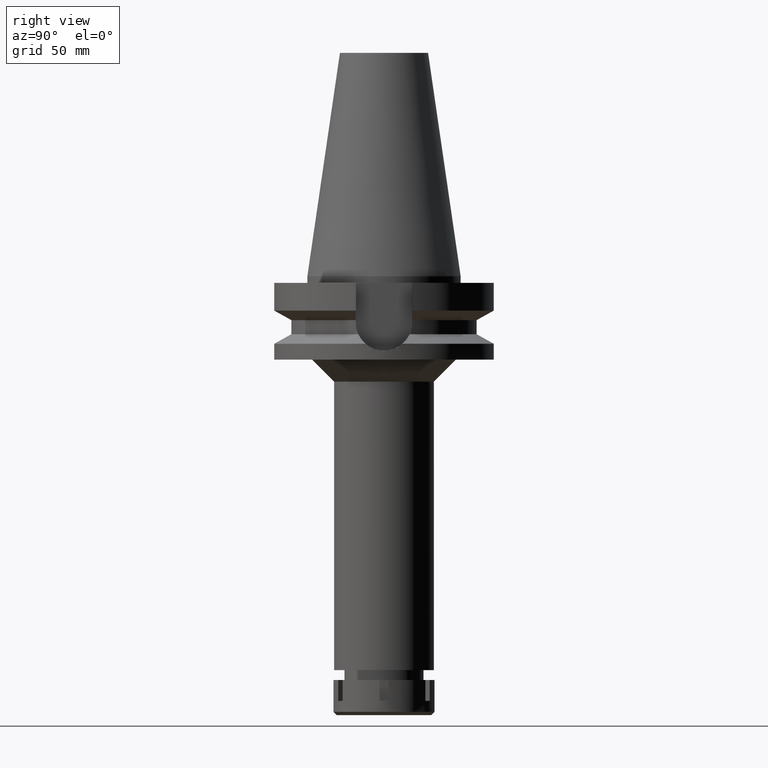
[diagram: clean part render]
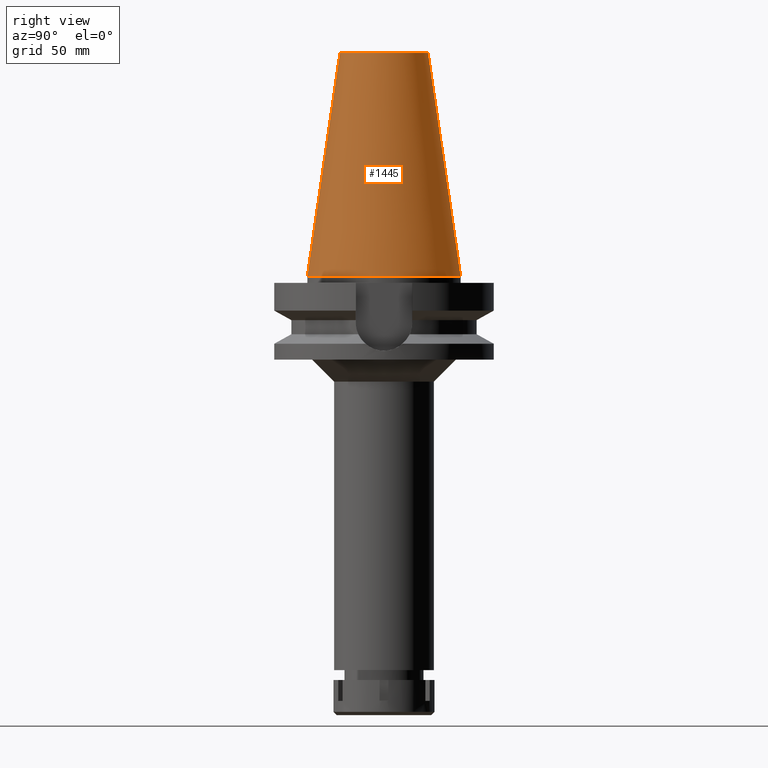
[diagram: same view with one face highlighted and labeled with its STEP entity id]
A machine part, right view. The second image highlights one B-rep face of the part: STEP entity #1445.
In plain terms, the highlighted conical surface has half-angle 8.297 deg.
Its self-contained STEP definition (entity closure, byte-faithful):
#141 = ORIENTED_EDGE ( 'NONE', *, *, #3213, .T. ) ;
#473 = CARTESIAN_POINT ( 'NONE',  ( 0.0000000000000000000, -34.92499999999999716, 5.400124791776999712E-13 ) ) ;
#605 = AXIS2_PLACEMENT_3D ( 'NONE', #2184, #2203, #3037 ) ;
#655 = EDGE_LOOP ( 'NONE', ( #141, #1182, #2547, #2921 ) ) ;
#761 = VERTEX_POINT ( 'NONE', #2329 ) ;
#1037 = VERTEX_POINT ( 'NONE', #1065 ) ;
#1065 = CARTESIAN_POINT ( 'NONE',  ( 0.0000000000000000000, 20.07942971896000017, 101.7999999999999972 ) ) ;
#1108 = DIRECTION ( 'NONE',  ( 0.0000000000000000000, -0.1443043893538948075, -0.9895333461855641000 ) ) ;
#1177 = EDGE_CURVE ( 'NONE', #2757, #2683, #2519, .T. ) ;
#1182 = ORIENTED_EDGE ( 'NONE', *, *, #1177, .T. ) ;
#1289 = EDGE_CURVE ( 'NONE', #1037, #761, #2568, .T. ) ;
#1443 = CONICAL_SURFACE ( 'NONE', #1619, 27.50221485948000222, 0.1448099680379422438 ) ;
#1445 = ADVANCED_FACE ( 'NONE', ( #2993 ), #1443, .T. ) ;
#1619 = AXIS2_PLACEMENT_3D ( 'NONE', #3540, #3240, #3484 ) ;
#1759 = CARTESIAN_POINT ( 'NONE',  ( 0.0000000000000000000, -20.07942971896000017, 101.7999999999999972 ) ) ;
#1858 = DIRECTION ( 'NONE',  ( 0.0000000000000000000, 1.000000000000000000, 0.0000000000000000000 ) ) ;
#1893 = DIRECTION ( 'NONE',  ( 0.0000000000000000000, 0.0000000000000000000, -1.000000000000000000 ) ) ;
#1988 = EDGE_CURVE ( 'NONE', #761, #2683, #3397, .T. ) ;
#2026 = CARTESIAN_POINT ( 'NONE',  ( 0.0000000000000000000, 20.07942971896000017, 101.7999999999999972 ) ) ;
#2184 = CARTESIAN_POINT ( 'NONE',  ( 0.0000000000000000000, 1.847992019912999597E-14, 101.7999999999999972 ) ) ;
#2203 = DIRECTION ( 'NONE',  ( 0.0000000000000000000, 0.0000000000000000000, -1.000000000000000000 ) ) ;
#2329 = CARTESIAN_POINT ( 'NONE',  ( 0.0000000000000000000, 34.92499999999999716, 5.400124791776999712E-13 ) ) ;
#2506 = CARTESIAN_POINT ( 'NONE',  ( 0.0000000000000000000, 1.847992019912999597E-14, 3.979039320256999774E-13 ) ) ;
#2519 = LINE ( 'NONE', #3657, #3521 ) ;
#2547 = ORIENTED_EDGE ( 'NONE', *, *, #1988, .F. ) ;
#2568 = LINE ( 'NONE', #2026, #3345 ) ;
#2587 = DIRECTION ( 'NONE',  ( 0.0000000000000000000, 0.1443043893538948075, -0.9895333461855641000 ) ) ;
#2683 = VERTEX_POINT ( 'NONE', #473 ) ;
#2742 = AXIS2_PLACEMENT_3D ( 'NONE', #2506, #1893, #1858 ) ;
#2757 = VERTEX_POINT ( 'NONE', #1759 ) ;
#2921 = ORIENTED_EDGE ( 'NONE', *, *, #1289, .F. ) ;
#2993 = FACE_OUTER_BOUND ( 'NONE', #655, .T. ) ;
#3037 = DIRECTION ( 'NONE',  ( 0.0000000000000000000, 1.000000000000000000, 0.0000000000000000000 ) ) ;
#3168 = CIRCLE ( 'NONE', #605, 20.07942971896000017 ) ;
#3213 = EDGE_CURVE ( 'NONE', #1037, #2757, #3168, .T. ) ;
#3240 = DIRECTION ( 'NONE',  ( 0.0000000000000000000, 0.0000000000000000000, -1.000000000000000000 ) ) ;
#3345 = VECTOR ( 'NONE', #2587, 1000.000000000000114 ) ;
#3397 = CIRCLE ( 'NONE', #2742, 34.92499999999999716 ) ;
#3484 = DIRECTION ( 'NONE',  ( 0.0000000000000000000, -1.000000000000000000, 0.0000000000000000000 ) ) ;
#3521 = VECTOR ( 'NONE', #1108, 1000.000000000000114 ) ;
#3540 = CARTESIAN_POINT ( 'NONE',  ( 0.0000000000000000000, 1.847992019912999597E-14, 50.89999999999999858 ) ) ;
#3657 = CARTESIAN_POINT ( 'NONE',  ( 0.0000000000000000000, -20.07942971896000017, 101.7999999999999972 ) ) ;